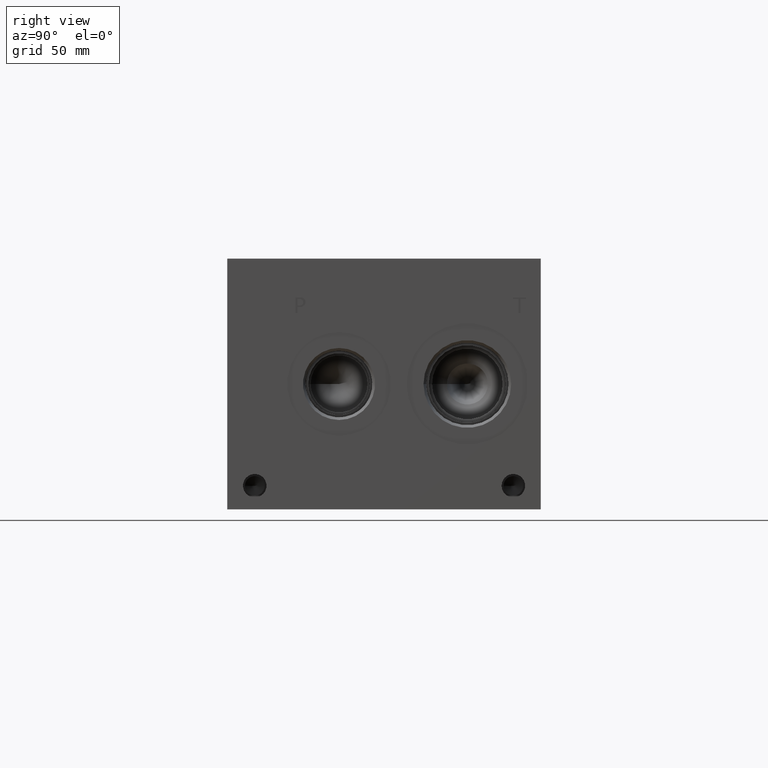
[diagram: clean part render]
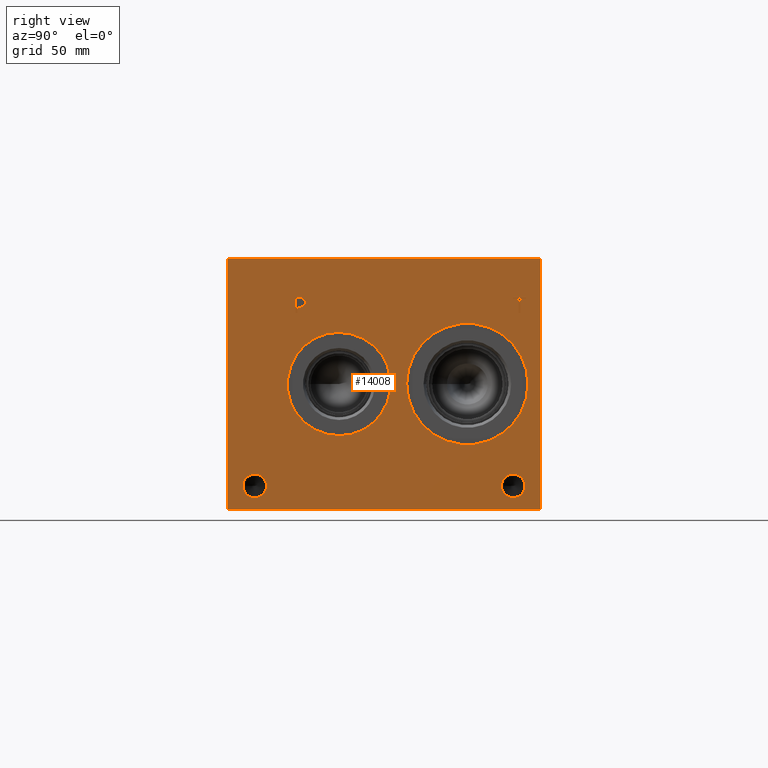
[diagram: same view with one face highlighted and labeled with its STEP entity id]
A machine part, right view. The second image highlights one B-rep face of the part: STEP entity #14008.
In plain terms, the highlighted planar face has unit normal (1, 0, 0).
Its self-contained STEP definition (entity closure, byte-faithful):
#389=CIRCLE('',#14777,24.5618);
#390=CIRCLE('',#14778,24.5618);
#391=CIRCLE('',#14779,21.0185);
#392=CIRCLE('',#14780,21.0185);
#393=CIRCLE('',#14781,4.7625);
#394=CIRCLE('',#14782,4.7625);
#395=CIRCLE('',#14783,4.7625);
#396=CIRCLE('',#14784,4.7625);
#898=B_SPLINE_CURVE_WITH_KNOTS('',2,(#20409,#20410,#20411,#20412),
 .UNSPECIFIED.,.F.,.F.,(3,1,3),(0.,1.,2.),.UNSPECIFIED.);
#900=B_SPLINE_CURVE_WITH_KNOTS('',2,(#20430,#20431,#20432,#20433),
 .UNSPECIFIED.,.F.,.F.,(3,1,3),(0.,1.,2.),.UNSPECIFIED.);
#902=B_SPLINE_CURVE_WITH_KNOTS('',2,(#20479,#20480,#20481,#20482),
 .UNSPECIFIED.,.F.,.F.,(3,1,3),(0.,1.,2.),.UNSPECIFIED.);
#904=B_SPLINE_CURVE_WITH_KNOTS('',2,(#20497,#20498,#20499,#20500),
 .UNSPECIFIED.,.F.,.F.,(3,1,3),(0.,1.,2.),.UNSPECIFIED.);
#1161=FACE_BOUND('',#2108,.T.);
#1162=FACE_BOUND('',#2109,.T.);
#1163=FACE_BOUND('',#2110,.T.);
#1164=FACE_BOUND('',#2111,.T.);
#1165=FACE_BOUND('',#2112,.T.);
#1166=FACE_BOUND('',#2113,.T.);
#1307=FACE_OUTER_BOUND('',#2107,.T.);
#2107=EDGE_LOOP('',(#9572,#9573,#9574,#9575));
#2108=EDGE_LOOP('',(#9576,#9577));
#2109=EDGE_LOOP('',(#9578,#9579));
#2110=EDGE_LOOP('',(#9580,#9581));
#2111=EDGE_LOOP('',(#9582,#9583));
#2112=EDGE_LOOP('',(#9584,#9585,#9586,#9587,#9588,#9589,#9590,#9591));
#2113=EDGE_LOOP('',(#9592,#9593,#9594,#9595,#9596,#9597,#9598,#9599,#9600));
#2935=LINE('',#18943,#4229);
#3216=LINE('',#20442,#4510);
#3219=LINE('',#20448,#4513);
#3222=LINE('',#20454,#4516);
#3225=LINE('',#20460,#4519);
#3228=LINE('',#20466,#4522);
#3232=LINE('',#20508,#4526);
#3233=LINE('',#20510,#4527);
#3234=LINE('',#20511,#4528);
#3235=LINE('',#20530,#4529);
#3236=LINE('',#20532,#4530);
#3237=LINE('',#20534,#4531);
#3238=LINE('',#20536,#4532);
#3239=LINE('',#20538,#4533);
#3240=LINE('',#20540,#4534);
#3241=LINE('',#20542,#4535);
#3242=LINE('',#20543,#4536);
#4229=VECTOR('',#15738,10.);
#4510=VECTOR('',#16081,10.);
#4513=VECTOR('',#16086,10.);
#4516=VECTOR('',#16091,10.);
#4519=VECTOR('',#16096,10.);
#4522=VECTOR('',#16101,10.);
#4526=VECTOR('',#16109,10.);
#4527=VECTOR('',#16110,10.);
#4528=VECTOR('',#16111,10.);
#4529=VECTOR('',#16128,10.);
#4530=VECTOR('',#16129,10.);
#4531=VECTOR('',#16130,10.);
#4532=VECTOR('',#16131,10.);
#4533=VECTOR('',#16132,10.);
#4534=VECTOR('',#16133,10.);
#4535=VECTOR('',#16134,10.);
#4536=VECTOR('',#16135,10.);
#5512=VERTEX_POINT('',#18940);
#5513=VERTEX_POINT('',#18942);
#5922=VERTEX_POINT('',#20407);
#5923=VERTEX_POINT('',#20408);
#5926=VERTEX_POINT('',#20429);
#5928=VERTEX_POINT('',#20441);
#5930=VERTEX_POINT('',#20447);
#5932=VERTEX_POINT('',#20453);
#5934=VERTEX_POINT('',#20459);
#5936=VERTEX_POINT('',#20465);
#5938=VERTEX_POINT('',#20478);
#5940=VERTEX_POINT('',#20507);
#5941=VERTEX_POINT('',#20509);
#5942=VERTEX_POINT('',#20512);
#5943=VERTEX_POINT('',#20513);
#5944=VERTEX_POINT('',#20516);
#5945=VERTEX_POINT('',#20517);
#5946=VERTEX_POINT('',#20520);
#5947=VERTEX_POINT('',#20521);
#5948=VERTEX_POINT('',#20524);
#5949=VERTEX_POINT('',#20525);
#5950=VERTEX_POINT('',#20528);
#5951=VERTEX_POINT('',#20529);
#5952=VERTEX_POINT('',#20531);
#5953=VERTEX_POINT('',#20533);
#5954=VERTEX_POINT('',#20535);
#5955=VERTEX_POINT('',#20537);
#5956=VERTEX_POINT('',#20539);
#5957=VERTEX_POINT('',#20541);
#6932=EDGE_CURVE('',#5512,#5513,#2935,.T.);
#7373=EDGE_CURVE('',#5922,#5923,#898,.T.);
#7377=EDGE_CURVE('',#5926,#5922,#900,.T.);
#7380=EDGE_CURVE('',#5928,#5926,#3216,.T.);
#7383=EDGE_CURVE('',#5930,#5928,#3219,.T.);
#7386=EDGE_CURVE('',#5932,#5930,#3222,.T.);
#7389=EDGE_CURVE('',#5934,#5932,#3225,.T.);
#7392=EDGE_CURVE('',#5936,#5934,#3228,.T.);
#7395=EDGE_CURVE('',#5938,#5936,#902,.T.);
#7398=EDGE_CURVE('',#5923,#5938,#904,.T.);
#7400=EDGE_CURVE('',#5512,#5940,#3232,.T.);
#7401=EDGE_CURVE('',#5940,#5941,#3233,.T.);
#7402=EDGE_CURVE('',#5513,#5941,#3234,.T.);
#7403=EDGE_CURVE('',#5942,#5943,#389,.T.);
#7404=EDGE_CURVE('',#5943,#5942,#390,.T.);
#7405=EDGE_CURVE('',#5944,#5945,#391,.T.);
#7406=EDGE_CURVE('',#5945,#5944,#392,.T.);
#7407=EDGE_CURVE('',#5946,#5947,#393,.T.);
#7408=EDGE_CURVE('',#5947,#5946,#394,.T.);
#7409=EDGE_CURVE('',#5948,#5949,#395,.T.);
#7410=EDGE_CURVE('',#5949,#5948,#396,.T.);
#7411=EDGE_CURVE('',#5950,#5951,#3235,.T.);
#7412=EDGE_CURVE('',#5951,#5952,#3236,.T.);
#7413=EDGE_CURVE('',#5952,#5953,#3237,.T.);
#7414=EDGE_CURVE('',#5953,#5954,#3238,.T.);
#7415=EDGE_CURVE('',#5954,#5955,#3239,.T.);
#7416=EDGE_CURVE('',#5955,#5956,#3240,.T.);
#7417=EDGE_CURVE('',#5956,#5957,#3241,.T.);
#7418=EDGE_CURVE('',#5957,#5950,#3242,.T.);
#9572=ORIENTED_EDGE('',*,*,#7400,.T.);
#9573=ORIENTED_EDGE('',*,*,#7401,.T.);
#9574=ORIENTED_EDGE('',*,*,#7402,.F.);
#9575=ORIENTED_EDGE('',*,*,#6932,.F.);
#9576=ORIENTED_EDGE('',*,*,#7403,.T.);
#9577=ORIENTED_EDGE('',*,*,#7404,.T.);
#9578=ORIENTED_EDGE('',*,*,#7405,.T.);
#9579=ORIENTED_EDGE('',*,*,#7406,.T.);
#9580=ORIENTED_EDGE('',*,*,#7407,.T.);
#9581=ORIENTED_EDGE('',*,*,#7408,.T.);
#9582=ORIENTED_EDGE('',*,*,#7409,.T.);
#9583=ORIENTED_EDGE('',*,*,#7410,.T.);
#9584=ORIENTED_EDGE('',*,*,#7411,.T.);
#9585=ORIENTED_EDGE('',*,*,#7412,.T.);
#9586=ORIENTED_EDGE('',*,*,#7413,.T.);
#9587=ORIENTED_EDGE('',*,*,#7414,.T.);
#9588=ORIENTED_EDGE('',*,*,#7415,.T.);
#9589=ORIENTED_EDGE('',*,*,#7416,.T.);
#9590=ORIENTED_EDGE('',*,*,#7417,.T.);
#9591=ORIENTED_EDGE('',*,*,#7418,.T.);
#9592=ORIENTED_EDGE('',*,*,#7373,.T.);
#9593=ORIENTED_EDGE('',*,*,#7398,.T.);
#9594=ORIENTED_EDGE('',*,*,#7395,.T.);
#9595=ORIENTED_EDGE('',*,*,#7392,.T.);
#9596=ORIENTED_EDGE('',*,*,#7389,.T.);
#9597=ORIENTED_EDGE('',*,*,#7386,.T.);
#9598=ORIENTED_EDGE('',*,*,#7383,.T.);
#9599=ORIENTED_EDGE('',*,*,#7380,.T.);
#9600=ORIENTED_EDGE('',*,*,#7377,.T.);
#13059=PLANE('',#14776);
#14008=ADVANCED_FACE('',(#1307,#1161,#1162,#1163,#1164,#1165,#1166),#13059,
 .T.);
#14776=AXIS2_PLACEMENT_3D('',#20506,#16107,#16108);
#14777=AXIS2_PLACEMENT_3D('',#20514,#16112,#16113);
#14778=AXIS2_PLACEMENT_3D('',#20515,#16114,#16115);
#14779=AXIS2_PLACEMENT_3D('',#20518,#16116,#16117);
#14780=AXIS2_PLACEMENT_3D('',#20519,#16118,#16119);
#14781=AXIS2_PLACEMENT_3D('',#20522,#16120,#16121);
#14782=AXIS2_PLACEMENT_3D('',#20523,#16122,#16123);
#14783=AXIS2_PLACEMENT_3D('',#20526,#16124,#16125);
#14784=AXIS2_PLACEMENT_3D('',#20527,#16126,#16127);
#15738=DIRECTION('',(0.,0.,1.));
#16081=DIRECTION('',(0.,1.,0.));
#16086=DIRECTION('',(0.,0.,1.));
#16091=DIRECTION('',(0.,-1.,0.));
#16096=DIRECTION('',(0.,0.,-1.));
#16101=DIRECTION('',(0.,-1.,0.));
#16107=DIRECTION('center_axis',(1.,0.,0.));
#16108=DIRECTION('ref_axis',(0.,1.,0.));
#16109=DIRECTION('',(0.,1.,0.));
#16110=DIRECTION('',(0.,0.,1.));
#16111=DIRECTION('',(0.,1.,0.));
#16112=DIRECTION('center_axis',(-1.,0.,0.));
#16113=DIRECTION('ref_axis',(0.,1.,0.));
#16114=DIRECTION('center_axis',(-1.,0.,0.));
#16115=DIRECTION('ref_axis',(0.,1.,0.));
#16116=DIRECTION('center_axis',(-1.,0.,0.));
#16117=DIRECTION('ref_axis',(0.,0.,-1.));
#16118=DIRECTION('center_axis',(-1.,0.,0.));
#16119=DIRECTION('ref_axis',(0.,0.,-1.));
#16120=DIRECTION('center_axis',(-1.,0.,0.));
#16121=DIRECTION('ref_axis',(0.,1.,0.));
#16122=DIRECTION('center_axis',(-1.,0.,0.));
#16123=DIRECTION('ref_axis',(0.,1.,0.));
#16124=DIRECTION('center_axis',(-1.,0.,0.));
#16125=DIRECTION('ref_axis',(0.,1.,0.));
#16126=DIRECTION('center_axis',(-1.,0.,0.));
#16127=DIRECTION('ref_axis',(0.,1.,0.));
#16128=DIRECTION('',(0.,-1.,0.));
#16129=DIRECTION('',(0.,0.,1.));
#16130=DIRECTION('',(0.,-1.,0.));
#16131=DIRECTION('',(0.,0.,1.));
#16132=DIRECTION('',(0.,1.,0.));
#16133=DIRECTION('',(0.,0.,-1.));
#16134=DIRECTION('',(0.,-1.,0.));
#16135=DIRECTION('',(0.,0.,-1.));
#18940=CARTESIAN_POINT('',(247.65,0.,0.));
#18942=CARTESIAN_POINT('',(247.65,0.,101.6));
#18943=CARTESIAN_POINT('',(247.65,0.,0.));
#20407=CARTESIAN_POINT('',(247.65,30.9007672023594,85.4557681439707));
#20408=CARTESIAN_POINT('',(247.65,31.657209654532,83.9377373726039));
#20409=CARTESIAN_POINT('Ctrl Pts',(247.65,30.9007672023594,85.4557681439707));
#20410=CARTESIAN_POINT('Ctrl Pts',(247.65,31.2558320268486,85.2139123939563));
#20411=CARTESIAN_POINT('Ctrl Pts',(247.65,31.657209654532,84.4677616758269));
#20412=CARTESIAN_POINT('Ctrl Pts',(247.65,31.657209654532,83.9377373726039));
#20429=CARTESIAN_POINT('',(247.65,29.2386521543883,85.8519999046325));
#20430=CARTESIAN_POINT('Ctrl Pts',(247.65,29.2386521543883,85.8519999046325));
#20431=CARTESIAN_POINT('Ctrl Pts',(247.65,29.8046975267624,85.8519999046325));
#20432=CARTESIAN_POINT('Ctrl Pts',(247.65,30.597161048086,85.6667486918556));
#20433=CARTESIAN_POINT('Ctrl Pts',(247.65,30.9007672023594,85.4557681439707));
#20441=CARTESIAN_POINT('',(247.65,27.6434333776978,85.8519999046325));
#20442=CARTESIAN_POINT('',(247.65,13.8217166888489,85.8519999046325));
#20447=CARTESIAN_POINT('',(247.65,27.6434333776978,79.502));
#20448=CARTESIAN_POINT('',(247.65,27.6434333776978,39.751));
#20453=CARTESIAN_POINT('',(247.65,28.4873555692373,79.502));
#20454=CARTESIAN_POINT('',(247.65,14.2436777846186,79.502));
#20459=CARTESIAN_POINT('',(247.65,28.4873555692373,81.8690988299279));
#20460=CARTESIAN_POINT('',(247.65,28.4873555692373,40.9345494149639));
#20465=CARTESIAN_POINT('',(247.65,29.2026310852372,81.8690988299279));
#20466=CARTESIAN_POINT('',(247.65,14.6013155426186,81.8690988299279));
#20478=CARTESIAN_POINT('',(247.65,31.1014560162011,82.5277698086904));
#20479=CARTESIAN_POINT('Ctrl Pts',(247.65,31.1014560162011,82.5277698086904));
#20480=CARTESIAN_POINT('Ctrl Pts',(247.65,30.7721205268198,82.2035801863307));
#20481=CARTESIAN_POINT('Ctrl Pts',(247.65,29.8818855320861,81.8690988299279));
#20482=CARTESIAN_POINT('Ctrl Pts',(247.65,29.2026310852372,81.8690988299279));
#20497=CARTESIAN_POINT('Ctrl Pts',(247.65,31.657209654532,83.9377373726039));
#20498=CARTESIAN_POINT('Ctrl Pts',(247.65,31.657209654532,83.5260680108774));
#20499=CARTESIAN_POINT('Ctrl Pts',(247.65,31.3638952343018,82.7850631597695));
#20500=CARTESIAN_POINT('Ctrl Pts',(247.65,31.1014560162011,82.5277698086904));
#20506=CARTESIAN_POINT('Origin',(247.65,0.,0.));
#20507=CARTESIAN_POINT('',(247.65,127.,0.));
#20508=CARTESIAN_POINT('',(247.65,0.,0.));
#20509=CARTESIAN_POINT('',(247.65,127.,101.6));
#20510=CARTESIAN_POINT('',(247.65,127.,0.));
#20511=CARTESIAN_POINT('',(247.65,0.,101.6));
#20512=CARTESIAN_POINT('',(247.65,121.8184,50.8));
#20513=CARTESIAN_POINT('',(247.65,72.6948,50.8));
#20514=CARTESIAN_POINT('Origin',(247.65,97.2566,50.8));
#20515=CARTESIAN_POINT('Origin',(247.65,97.2566,50.8));
#20516=CARTESIAN_POINT('',(247.65,45.2882,29.7815));
#20517=CARTESIAN_POINT('',(247.65,45.2882,71.8185));
#20518=CARTESIAN_POINT('Origin',(247.65,45.2882,50.8));
#20519=CARTESIAN_POINT('Origin',(247.65,45.2882,50.8));
#20520=CARTESIAN_POINT('',(247.65,120.6373,9.525));
#20521=CARTESIAN_POINT('',(247.65,111.1123,9.525));
#20522=CARTESIAN_POINT('Origin',(247.65,115.8748,9.525));
#20523=CARTESIAN_POINT('Origin',(247.65,115.8748,9.525));
#20524=CARTESIAN_POINT('',(247.65,15.8877,9.525));
#20525=CARTESIAN_POINT('',(247.65,6.3627,9.525));
#20526=CARTESIAN_POINT('Origin',(247.65,11.1252,9.525));
#20527=CARTESIAN_POINT('Origin',(247.65,11.1252,9.525));
#20528=CARTESIAN_POINT('',(247.65,118.767765271453,79.502));
#20529=CARTESIAN_POINT('',(247.65,117.923843079913,79.502));
#20530=CARTESIAN_POINT('',(247.65,59.3838826357265,79.502));
#20531=CARTESIAN_POINT('',(247.65,117.923843079913,85.1007033194816));
#20532=CARTESIAN_POINT('',(247.65,117.923843079913,39.751));
#20533=CARTESIAN_POINT('',(247.65,115.793454132978,85.1007033194816));
#20534=CARTESIAN_POINT('',(247.65,58.9619215399567,85.1007033194816));
#20535=CARTESIAN_POINT('',(247.65,115.793454132978,85.8519999046325));
#20536=CARTESIAN_POINT('',(247.65,115.793454132978,42.5503516597408));
#20537=CARTESIAN_POINT('',(247.65,120.898154218388,85.8519999046325));
#20538=CARTESIAN_POINT('',(247.65,57.8967270664892,85.8519999046325));
#20539=CARTESIAN_POINT('',(247.65,120.898154218388,85.1007033194816));
#20540=CARTESIAN_POINT('',(247.65,120.898154218388,42.9259999523163));
#20541=CARTESIAN_POINT('',(247.65,118.767765271453,85.1007033194816));
#20542=CARTESIAN_POINT('',(247.65,60.449077109194,85.1007033194816));
#20543=CARTESIAN_POINT('',(247.65,118.767765271453,42.5503516597408));